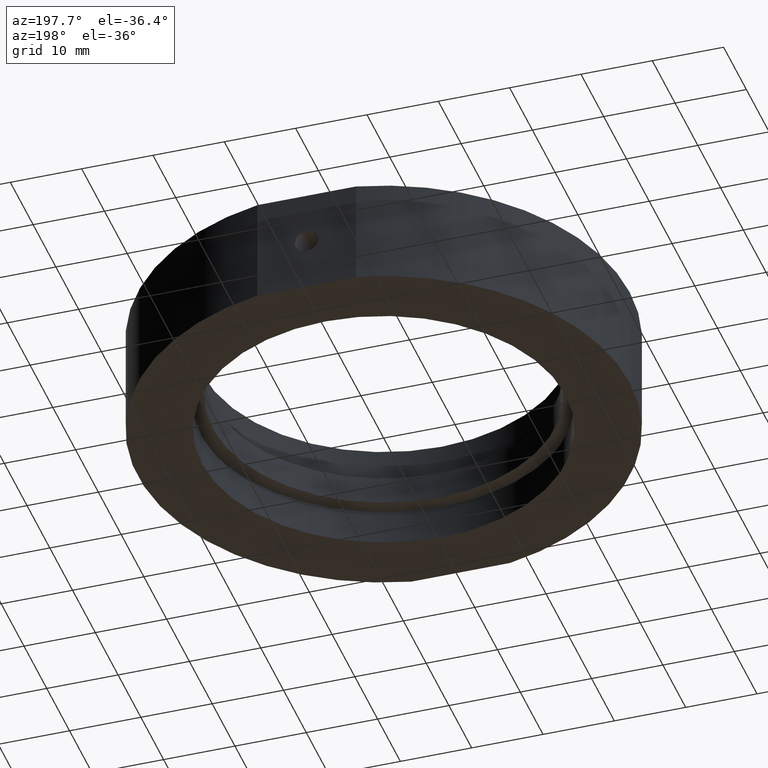
[diagram: clean part render]
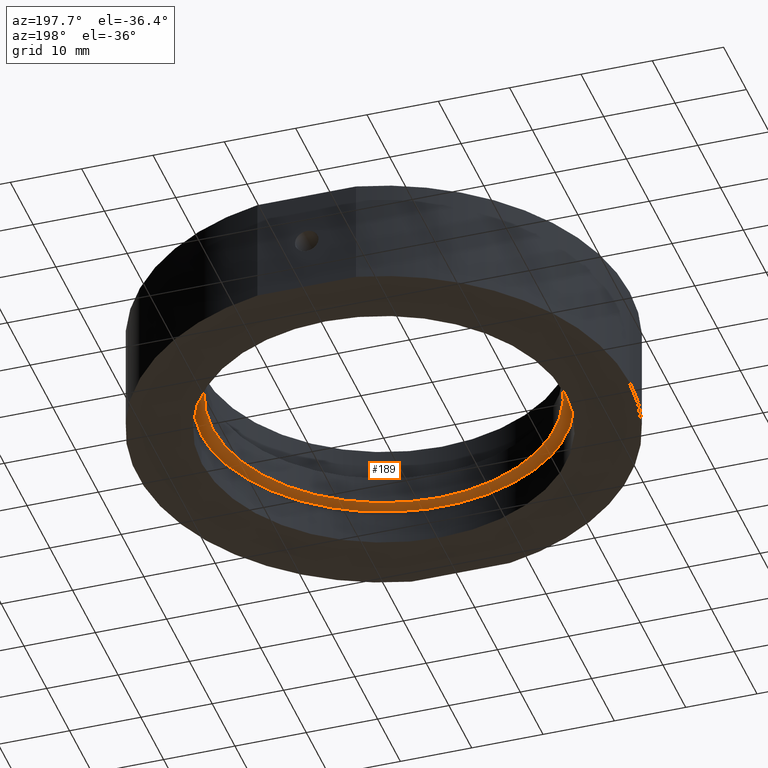
[diagram: same view with one face highlighted and labeled with its STEP entity id]
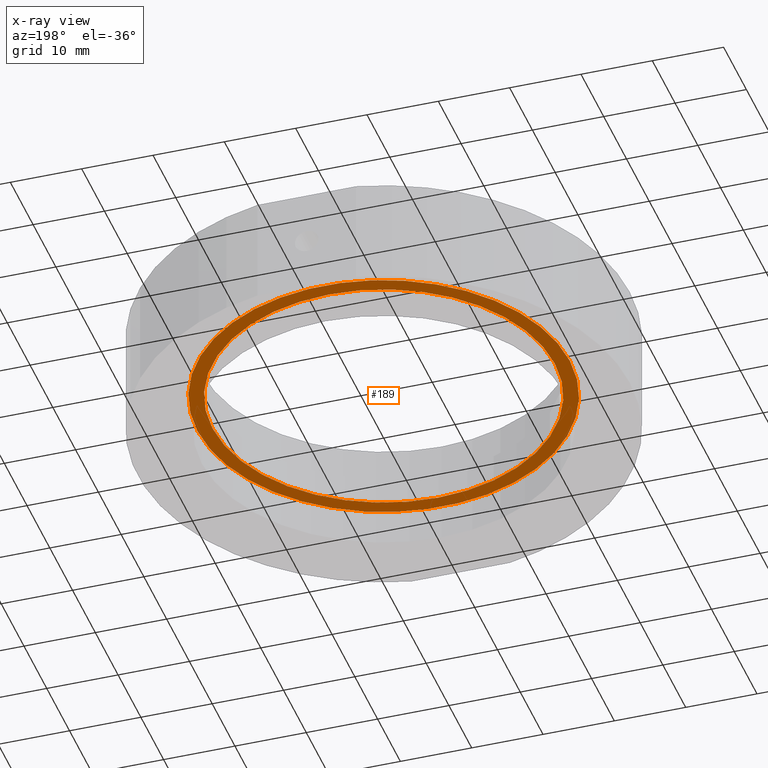
[diagram: x-ray of the same camera — body ghosted, the highlighted face saturated]
A machine part, auxiliary view. The second image highlights one B-rep face of the part: STEP entity #189.
The next image is the same camera in x-ray: the body ghosted, the highlighted face saturated — about 0% of this face is hidden behind the body in this view.
In plain terms, the highlighted planar face has unit normal (0, 0, 1).
Its self-contained STEP definition (entity closure, byte-faithful):
#60 = VERTEX_POINT ( 'NONE', #935 ) ;
#72 = CARTESIAN_POINT ( 'NONE',  ( 24.00000000000000400, 2.939152317953647900E-015, -2.000000000000001300 ) ) ;
#74 = ORIENTED_EDGE ( 'NONE', *, *, #792, .T. ) ;
#124 = FACE_BOUND ( 'NONE', #601, .T. ) ;
#131 = DIRECTION ( 'NONE',  ( -1.000000000000000000, 0.0000000000000000000, 1.163128767417399300E-016 ) ) ;
#143 = DIRECTION ( 'NONE',  ( 1.224646799147350500E-016, 0.0000000000000000000, 1.000000000000000000 ) ) ;
#178 = AXIS2_PLACEMENT_3D ( 'NONE', #200, #344, #873 ) ;
#189 = ADVANCED_FACE ( 'NONE', ( #124, #251 ), #874, .F. ) ;
#200 = CARTESIAN_POINT ( 'NONE',  ( 3.666478391855845600E-015, 0.0000000000000000000, -1.999999999999998200 ) ) ;
#245 = EDGE_CURVE ( 'NONE', #402, #883, #823, .T. ) ;
#247 = EDGE_LOOP ( 'NONE', ( #74, #786 ) ) ;
#251 = FACE_OUTER_BOUND ( 'NONE', #247, .T. ) ;
#283 = AXIS2_PLACEMENT_3D ( 'NONE', #581, #292, #511 ) ;
#292 = DIRECTION ( 'NONE',  ( -1.224646799147350500E-016, -0.0000000000000000000, -1.000000000000000000 ) ) ;
#311 = AXIS2_PLACEMENT_3D ( 'NONE', #622, #771, #699 ) ;
#334 = VERTEX_POINT ( 'NONE', #676 ) ;
#344 = DIRECTION ( 'NONE',  ( -1.224646799147350500E-016, -0.0000000000000000000, -1.000000000000000000 ) ) ;
#354 = DIRECTION ( 'NONE',  ( -1.224646799147350500E-016, -0.0000000000000000000, -1.000000000000000000 ) ) ;
#383 = AXIS2_PLACEMENT_3D ( 'NONE', #502, #143, #878 ) ;
#402 = VERTEX_POINT ( 'NONE', #522 ) ;
#502 = CARTESIAN_POINT ( 'NONE',  ( 24.00000000000000400, 0.0000000000000000000, -2.000000000000001800 ) ) ;
#511 = DIRECTION ( 'NONE',  ( -1.000000000000000000, 0.0000000000000000000, 1.264902534566421900E-016 ) ) ;
#522 = CARTESIAN_POINT ( 'NONE',  ( -23.99999999999999600, 0.0000000000000000000, -1.999999999999995300 ) ) ;
#556 = EDGE_CURVE ( 'NONE', #883, #402, #612, .T. ) ;
#581 = CARTESIAN_POINT ( 'NONE',  ( 3.666478391855845600E-015, 0.0000000000000000000, -1.999999999999998200 ) ) ;
#588 = AXIS2_PLACEMENT_3D ( 'NONE', #941, #354, #131 ) ;
#601 = EDGE_LOOP ( 'NONE', ( #849, #880 ) ) ;
#612 = CIRCLE ( 'NONE', #311, 24.00000000000000000 ) ;
#622 = CARTESIAN_POINT ( 'NONE',  ( 3.666478391855845600E-015, 0.0000000000000000000, -1.999999999999998200 ) ) ;
#676 = CARTESIAN_POINT ( 'NONE',  ( -26.09999999999999800, 0.0000000000000000000, -1.999999999999995300 ) ) ;
#699 = DIRECTION ( 'NONE',  ( -1.000000000000000000, 0.0000000000000000000, 1.264902534566421900E-016 ) ) ;
#702 = EDGE_CURVE ( 'NONE', #60, #334, #893, .T. ) ;
#771 = DIRECTION ( 'NONE',  ( -1.224646799147350500E-016, -0.0000000000000000000, -1.000000000000000000 ) ) ;
#786 = ORIENTED_EDGE ( 'NONE', *, *, #702, .T. ) ;
#792 = EDGE_CURVE ( 'NONE', #334, #60, #855, .T. ) ;
#823 = CIRCLE ( 'NONE', #283, 24.00000000000000000 ) ;
#849 = ORIENTED_EDGE ( 'NONE', *, *, #245, .F. ) ;
#855 = CIRCLE ( 'NONE', #588, 26.10000000000000100 ) ;
#873 = DIRECTION ( 'NONE',  ( -1.000000000000000000, 0.0000000000000000000, 1.163128767417399300E-016 ) ) ;
#874 = PLANE ( 'NONE',  #383 ) ;
#878 = DIRECTION ( 'NONE',  ( 1.000000000000000000, 0.0000000000000000000, -1.224646799147350500E-016 ) ) ;
#880 = ORIENTED_EDGE ( 'NONE', *, *, #556, .F. ) ;
#883 = VERTEX_POINT ( 'NONE', #72 ) ;
#893 = CIRCLE ( 'NONE', #178, 26.10000000000000100 ) ;
#935 = CARTESIAN_POINT ( 'NONE',  ( 26.10000000000000500, 3.196328145774592300E-015, -2.000000000000001300 ) ) ;
#941 = CARTESIAN_POINT ( 'NONE',  ( 3.666478391855845600E-015, 0.0000000000000000000, -1.999999999999998200 ) ) ;